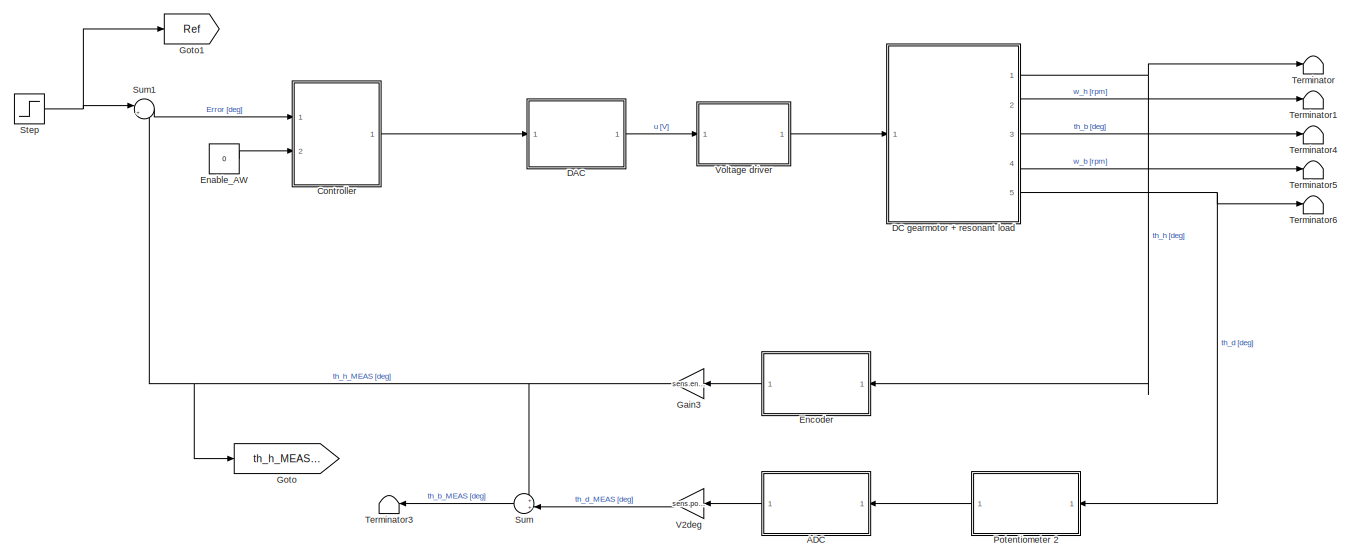
[diagram: root canvas - part 1/3, top center region]
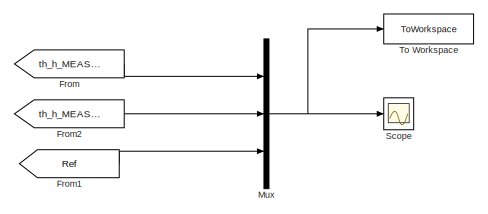
[diagram: root canvas - part 2/3, middle right region]
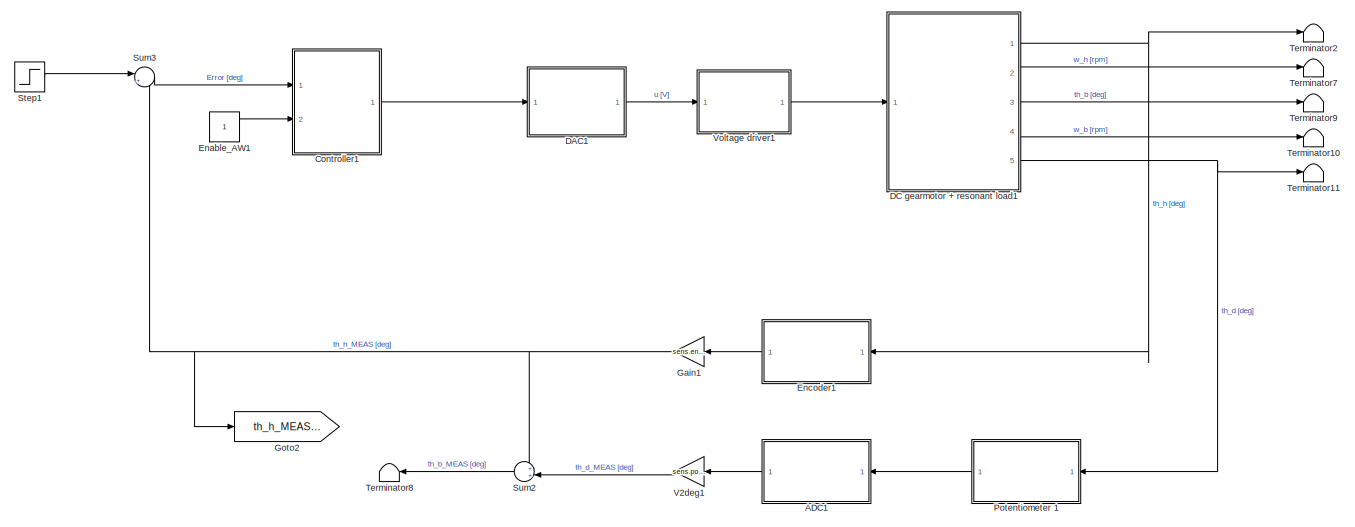
[diagram: root canvas - part 3/3, bottom center region]
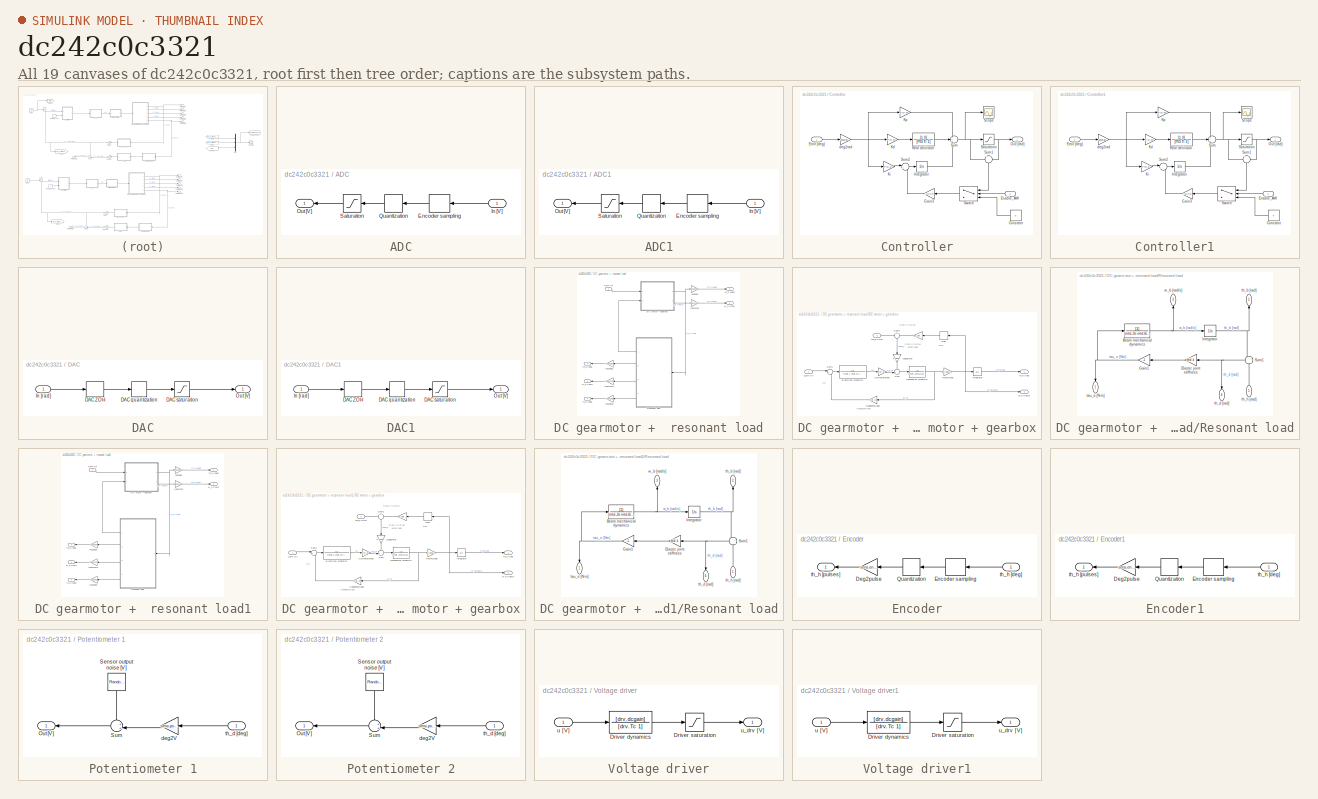
[diagram: thumbnail index - all 19 canvases of the model, root first then tree order]
MODEL slx_dc242c0c3321
KIND model
CONFIG AbsTol = auto
CONFIG EnableMultiTasking = off
CONFIG FixedStep = auto
CONFIG MaxStep = auto
CONFIG MinStep = auto
CONFIG RelTol = 1e-3
CONFIG SampleTimeConstraint = Unconstrained
CONFIG SolverName = ode45
CONFIG StartTime = 0.0
CONFIG StopTime = 4
BLOCK [SubSystem] ADC
  NameLocation = top
  Ports = [1, 1]
  RequestExecContextInheritance = off
BLOCK [ZeroOrderHold] ADC/Encoder sampling
  NameLocation = top
  SampleTime = sens.enc.T_s
BLOCK [Inport] ADC/In [V]
  NameLocation = top
BLOCK [Outport] ADC/Out [V]
  NameLocation = top
BLOCK [Quantizer] ADC/Quantization
  NameLocation = top
  QuantizationInterval = daq.adc.q
BLOCK [Saturate] ADC/Saturation
  LowerLimit = -daq.adc.fs
  NameLocation = top
  UpperLimit = daq.adc.fs
BLOCK [SubSystem] ADC1
  NameLocation = top
  Ports = [1, 1]
  RequestExecContextInheritance = off
BLOCK [ZeroOrderHold] ADC1/Encoder sampling
  NameLocation = top
  SampleTime = sens.enc.T_s
BLOCK [Inport] ADC1/In [V]
  NameLocation = top
BLOCK [Outport] ADC1/Out [V]
  NameLocation = top
BLOCK [Quantizer] ADC1/Quantization
  NameLocation = top
  QuantizationInterval = daq.adc.q
BLOCK [Saturate] ADC1/Saturation
  LowerLimit = -daq.adc.fs
  NameLocation = top
  UpperLimit = daq.adc.fs
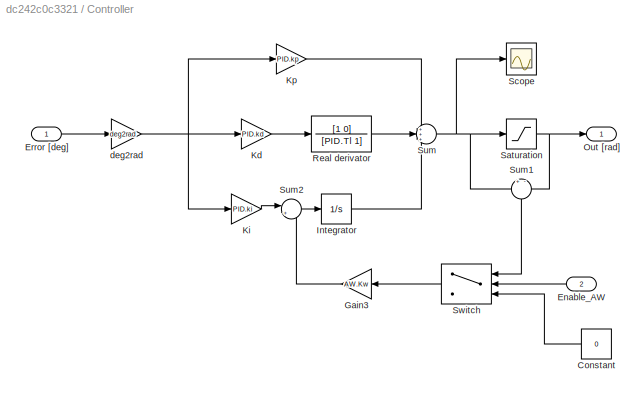
BLOCK [SubSystem] Controller
  Ports = [2, 1]
  RequestExecContextInheritance = off
BLOCK [Constant] Controller/Constant
  NameLocation = top
  Value = 0
BLOCK [Inport] Controller/Enable_AW
  NameLocation = top
  Port = 2
BLOCK [Inport] Controller/Error [deg]
BLOCK [Gain] Controller/Gain3
  Gain = AW.Kw
  NameLocation = top
BLOCK [Integrator] Controller/Integrator
  Ports = [1, 1]
BLOCK [Gain] Controller/Kd
  Gain = PID.kd
BLOCK [Gain] Controller/Ki
  Gain = PID.ki
BLOCK [Gain] Controller/Kp
  Gain = PID.kp
BLOCK [Outport] Controller/Out [rad]
BLOCK [TransferFcn] Controller/Real derivator
  Denominator = [PID.Tl 1]
  Numerator = [1 0]
BLOCK [Saturate] Controller/Saturation
  LowerLimit = -10
  UpperLimit = 10
BLOCK [Scope] Controller/Scope
  Floating = off
  NumInputPorts = 1
  Ports = [1]
  ScopeSpecificationString = Simulink.scopes.TimeScopeBlockCfg('CurrentConfiguration', extmgr.ConfigurationSet(extmgr.Configuration('Core','General UI',true),extmgr.Configuration('Core','Source UI',true),extmgr.Configuration('Sources','WiredSimulink',true,'DataLoggingVariableName','ScopeData1'),extmgr.Configuration('Visuals','Time Domain',true,'SerializedDisplays',{struct('MinYLimReal','-32.40531','MaxYLimReal','215.4143','YL...<+1368ch>
BLOCK [Sum] Controller/Sum
  Inputs = +++
  Ports = [3, 1]
BLOCK [Sum] Controller/Sum1
  Inputs = +-
  NameLocation = left
  Ports = [2, 1]
BLOCK [Sum] Controller/Sum2
  Inputs = |+-
  Ports = [2, 1]
BLOCK [Switch] Controller/Switch
  Criteria = u2 > Threshold
  InputSameDT = off
  NameLocation = top
  SaturateOnIntegerOverflow = off
BLOCK [Gain] Controller/deg2rad
  Gain = deg2rad
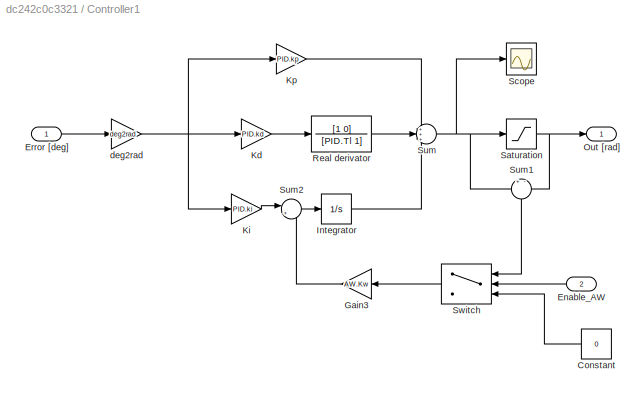
BLOCK [SubSystem] Controller1
  Ports = [2, 1]
  RequestExecContextInheritance = off
BLOCK [Constant] Controller1/Constant
  NameLocation = top
  Value = 0
BLOCK [Inport] Controller1/Enable_AW
  NameLocation = top
  Port = 2
BLOCK [Inport] Controller1/Error [deg]
BLOCK [Gain] Controller1/Gain3
  Gain = AW.Kw
  NameLocation = top
BLOCK [Integrator] Controller1/Integrator
  Ports = [1, 1]
BLOCK [Gain] Controller1/Kd
  Gain = PID.kd
BLOCK [Gain] Controller1/Ki
  Gain = PID.ki
BLOCK [Gain] Controller1/Kp
  Gain = PID.kp
BLOCK [Outport] Controller1/Out [rad]
BLOCK [TransferFcn] Controller1/Real derivator
  Denominator = [PID.Tl 1]
  Numerator = [1 0]
BLOCK [Saturate] Controller1/Saturation
  LowerLimit = -10
  UpperLimit = 10
BLOCK [Scope] Controller1/Scope
  Floating = off
  NumInputPorts = 1
  Ports = [1]
  ScopeSpecificationString = Simulink.scopes.TimeScopeBlockCfg('CurrentConfiguration', extmgr.ConfigurationSet(extmgr.Configuration('Core','General UI',true),extmgr.Configuration('Core','Source UI',true),extmgr.Configuration('Sources','WiredSimulink',true,'DataLoggingVariableName','ScopeData1'),extmgr.Configuration('Visuals','Time Domain',true,'SerializedDisplays',{struct('MinYLimReal','-11.77544','MaxYLimReal','89.5641','YLa...<+1364ch>
BLOCK [Sum] Controller1/Sum
  Inputs = +++
  Ports = [3, 1]
BLOCK [Sum] Controller1/Sum1
  Inputs = +-
  NameLocation = left
  Ports = [2, 1]
BLOCK [Sum] Controller1/Sum2
  Inputs = |+-
  Ports = [2, 1]
BLOCK [Switch] Controller1/Switch
  Criteria = u2 > Threshold
  InputSameDT = off
  NameLocation = top
  SaturateOnIntegerOverflow = off
BLOCK [Gain] Controller1/deg2rad
  Gain = deg2rad
BLOCK [SubSystem] DAC
  Ports = [1, 1]
  RequestExecContextInheritance = off
BLOCK [ZeroOrderHold] DAC/DAC ZOH
  SampleTime = sens.enc.T_s
BLOCK [Quantizer] DAC/DAC quantization
  QuantizationInterval = daq.dac.q
BLOCK [Saturate] DAC/DAC saturation
  LowerLimit = daq.dac.vss
  UpperLimit = daq.dac.vdd
BLOCK [Inport] DAC/In [rad]
BLOCK [Outport] DAC/Out [V]
BLOCK [SubSystem] DAC1
  Ports = [1, 1]
  RequestExecContextInheritance = off
BLOCK [ZeroOrderHold] DAC1/DAC ZOH
  SampleTime = sens.enc.T_s
BLOCK [Quantizer] DAC1/DAC quantization
  QuantizationInterval = daq.dac.q
BLOCK [Saturate] DAC1/DAC saturation
  LowerLimit = daq.dac.vss
  UpperLimit = daq.dac.vdd
BLOCK [Inport] DAC1/In [rad]
BLOCK [Outport] DAC1/Out [V]
BLOCK [SubSystem] DC gearmotor +  resonant load
  Ports = [1, 5]
  RequestExecContextInheritance = off
BLOCK [SubSystem] DC gearmotor +  resonant load/DC motor + gearbox
  Ports = [2, 2]
  RequestExecContextInheritance = off
BLOCK [Gain] DC gearmotor +  resonant load/DC motor + gearbox/ 
  Gain = est_par.tau_sf
  NameLocation = top
BLOCK [Gain] DC gearmotor +  resonant load/DC motor + gearbox/Current2torque
  Gain = mot.Kt
BLOCK [TransferFcn] DC gearmotor +  resonant load/DC motor + gearbox/Electrical dynamics
  Denominator = [mot.L mot.R+sens.curr.Rs]
BLOCK [Integrator] DC gearmotor +  resonant load/DC motor + gearbox/Integrator
  Ports = [1, 1]
BLOCK [Gain] DC gearmotor +  resonant load/DC motor + gearbox/Load2rotor
  Gain = 1/(gbox.N)
  NameLocation = left
BLOCK [TransferFcn] DC gearmotor +  resonant load/DC motor + gearbox/Mechanical dynamics
  Denominator = [mot.J+mld.Jh/(gbox.N)^2 est_par.B_eq]
BLOCK [Gain] DC gearmotor +  resonant load/DC motor + gearbox/Rotor2load
  Gain = 1/(gbox.N)
BLOCK [Gain] DC gearmotor +  resonant load/DC motor + gearbox/Speed2voltage
  Gain = mot.Ke
  NameLocation = top
BLOCK [Sum] DC gearmotor +  resonant load/DC motor + gearbox/Sum
  Inputs = -+|
  Ports = [2, 1]
BLOCK [Sum] DC gearmotor +  resonant load/DC motor + gearbox/Sum1
  Inputs = |+-
  Ports = [2, 1]
BLOCK [Sum] DC gearmotor +  resonant load/DC motor + gearbox/Sum2
  Inputs = +|+
  NameLocation = left
  Ports = [2, 1]
BLOCK [Signum] DC gearmotor +  resonant load/DC motor + gearbox/sign
  NameLocation = top
  ZeroCross = off
BLOCK [Inport] DC gearmotor +  resonant load/DC motor + gearbox/tau_e [Nm]
  Port = 2
BLOCK [Outport] DC gearmotor +  resonant load/DC motor + gearbox/th_h [rad]
BLOCK [Inport] DC gearmotor +  resonant load/DC motor + gearbox/u_drv [V]
BLOCK [Outport] DC gearmotor +  resonant load/DC motor + gearbox/w_h [rad//s]
  Port = 2
BLOCK [SubSystem] DC gearmotor +  resonant load/Resonant load
  NameLocation = top
  Ports = [1, 4]
  RequestExecContextInheritance = off
BLOCK [TransferFcn] DC gearmotor +  resonant load/Resonant load/Beam mechanical dynamics
  Denominator = [mld.Jb mld.Bb]
BLOCK [Gain] DC gearmotor +  resonant load/Resonant load/Elastic joint stiffness
  Gain = mld.k
  NameLocation = top
BLOCK [Gain] DC gearmotor +  resonant load/Resonant load/Gain1
  Gain = -1
  NameLocation = top
BLOCK [Integrator] DC gearmotor +  resonant load/Resonant load/Integrator
  Ports = [1, 1]
BLOCK [Sum] DC gearmotor +  resonant load/Resonant load/Sum1
  Inputs = +|-
  NameLocation = top
  Ports = [2, 1]
BLOCK [Outport] DC gearmotor +  resonant load/Resonant load/tau_e [Nm]
  NameLocation = left
BLOCK [Outport] DC gearmotor +  resonant load/Resonant load/th_b [rad]
  NameLocation = right
  Port = 2
BLOCK [Outport] DC gearmotor +  resonant load/Resonant load/th_d [rad]
  NameLocation = left
  Port = 4
BLOCK [Inport] DC gearmotor +  resonant load/Resonant load/th_h [rad]
  NameLocation = right
BLOCK [Outport] DC gearmotor +  resonant load/Resonant load/w_b [rad//s]
  NameLocation = right
  Port = 3
BLOCK [Gain] DC gearmotor +  resonant load/rad2deg
  Gain = rad2deg
BLOCK [Gain] DC gearmotor +  resonant load/rad2deg1
  Gain = rad2deg
  NameLocation = top
BLOCK [Gain] DC gearmotor +  resonant load/rad2deg2
  Gain = rad2deg
  NameLocation = top
BLOCK [Gain] DC gearmotor +  resonant load/rads2rpm
  Gain = rads2rpm
BLOCK [Gain] DC gearmotor +  resonant load/rads2rpm1
  Gain = rads2rpm
  NameLocation = top
BLOCK [Outport] DC gearmotor +  resonant load/th_b [deg]
  NameLocation = top
  Port = 3
BLOCK [Outport] DC gearmotor +  resonant load/th_d [deg]
  NameLocation = top
  Port = 5
BLOCK [Outport] DC gearmotor +  resonant load/th_h [deg]
BLOCK [Inport] DC gearmotor +  resonant load/u_drv [V]
BLOCK [Outport] DC gearmotor +  resonant load/w_b [rpm]
  NameLocation = top
  Port = 4
BLOCK [Outport] DC gearmotor +  resonant load/w_h [rpm]
  Port = 2
BLOCK [SubSystem] DC gearmotor +  resonant load1
  Ports = [1, 5]
  RequestExecContextInheritance = off
BLOCK [SubSystem] DC gearmotor +  resonant load1/DC motor + gearbox
  Ports = [2, 2]
  RequestExecContextInheritance = off
BLOCK [Gain] DC gearmotor +  resonant load1/DC motor + gearbox/ 
  Gain = est_par.tau_sf
  NameLocation = top
BLOCK [Gain] DC gearmotor +  resonant load1/DC motor + gearbox/Current2torque
  Gain = mot.Kt
BLOCK [TransferFcn] DC gearmotor +  resonant load1/DC motor + gearbox/Electrical dynamics
  Denominator = [mot.L mot.R+sens.curr.Rs]
BLOCK [Integrator] DC gearmotor +  resonant load1/DC motor + gearbox/Integrator
  Ports = [1, 1]
BLOCK [Gain] DC gearmotor +  resonant load1/DC motor + gearbox/Load2rotor
  Gain = 1/(gbox.N)
  NameLocation = left
BLOCK [TransferFcn] DC gearmotor +  resonant load1/DC motor + gearbox/Mechanical dynamics
  Denominator = [mot.J+mld.Jh/(gbox.N)^2 est_par.B_eq]
BLOCK [Gain] DC gearmotor +  resonant load1/DC motor + gearbox/Rotor2load
  Gain = 1/(gbox.N)
BLOCK [Gain] DC gearmotor +  resonant load1/DC motor + gearbox/Speed2voltage
  Gain = mot.Ke
  NameLocation = top
BLOCK [Sum] DC gearmotor +  resonant load1/DC motor + gearbox/Sum
  Inputs = -+|
  Ports = [2, 1]
BLOCK [Sum] DC gearmotor +  resonant load1/DC motor + gearbox/Sum1
  Inputs = |+-
  Ports = [2, 1]
BLOCK [Sum] DC gearmotor +  resonant load1/DC motor + gearbox/Sum2
  Inputs = +|+
  NameLocation = left
  Ports = [2, 1]
BLOCK [Signum] DC gearmotor +  resonant load1/DC motor + gearbox/sign
  NameLocation = top
  ZeroCross = off
BLOCK [Inport] DC gearmotor +  resonant load1/DC motor + gearbox/tau_e [Nm]
  Port = 2
BLOCK [Outport] DC gearmotor +  resonant load1/DC motor + gearbox/th_h [rad]
BLOCK [Inport] DC gearmotor +  resonant load1/DC motor + gearbox/u_drv [V]
BLOCK [Outport] DC gearmotor +  resonant load1/DC motor + gearbox/w_h [rad//s]
  Port = 2
BLOCK [SubSystem] DC gearmotor +  resonant load1/Resonant load
  NameLocation = top
  Ports = [1, 4]
  RequestExecContextInheritance = off
BLOCK [TransferFcn] DC gearmotor +  resonant load1/Resonant load/Beam mechanical dynamics
  Denominator = [mld.Jb mld.Bb]
BLOCK [Gain] DC gearmotor +  resonant load1/Resonant load/Elastic joint stiffness
  Gain = mld.k
  NameLocation = top
BLOCK [Gain] DC gearmotor +  resonant load1/Resonant load/Gain1
  Gain = -1
  NameLocation = top
BLOCK [Integrator] DC gearmotor +  resonant load1/Resonant load/Integrator
  Ports = [1, 1]
BLOCK [Sum] DC gearmotor +  resonant load1/Resonant load/Sum1
  Inputs = +|-
  NameLocation = top
  Ports = [2, 1]
BLOCK [Outport] DC gearmotor +  resonant load1/Resonant load/tau_e [Nm]
  NameLocation = left
BLOCK [Outport] DC gearmotor +  resonant load1/Resonant load/th_b [rad]
  NameLocation = right
  Port = 2
BLOCK [Outport] DC gearmotor +  resonant load1/Resonant load/th_d [rad]
  NameLocation = left
  Port = 4
BLOCK [Inport] DC gearmotor +  resonant load1/Resonant load/th_h [rad]
  NameLocation = right
BLOCK [Outport] DC gearmotor +  resonant load1/Resonant load/w_b [rad//s]
  NameLocation = right
  Port = 3
BLOCK [Gain] DC gearmotor +  resonant load1/rad2deg
  Gain = rad2deg
BLOCK [Gain] DC gearmotor +  resonant load1/rad2deg1
  Gain = rad2deg
  NameLocation = top
BLOCK [Gain] DC gearmotor +  resonant load1/rad2deg2
  Gain = rad2deg
  NameLocation = top
BLOCK [Gain] DC gearmotor +  resonant load1/rads2rpm
  Gain = rads2rpm
BLOCK [Gain] DC gearmotor +  resonant load1/rads2rpm1
  Gain = rads2rpm
  NameLocation = top
BLOCK [Outport] DC gearmotor +  resonant load1/th_b [deg]
  NameLocation = top
  Port = 3
BLOCK [Outport] DC gearmotor +  resonant load1/th_d [deg]
  NameLocation = top
  Port = 5
BLOCK [Outport] DC gearmotor +  resonant load1/th_h [deg]
BLOCK [Inport] DC gearmotor +  resonant load1/u_drv [V]
BLOCK [Outport] DC gearmotor +  resonant load1/w_b [rpm]
  NameLocation = top
  Port = 4
BLOCK [Outport] DC gearmotor +  resonant load1/w_h [rpm]
  Port = 2
BLOCK [Constant] Enable_AW
  Value = 0
BLOCK [Constant] Enable_AW1
BLOCK [SubSystem] Encoder
  NameLocation = top
  Ports = [1, 1]
  RequestExecContextInheritance = off
BLOCK [Gain] Encoder/Deg2pulse
  Gain = sens.enc.deg2pulse
  NameLocation = top
BLOCK [ZeroOrderHold] Encoder/Encoder sampling
  NameLocation = top
  SampleTime = sens.enc.T_s
BLOCK [Quantizer] Encoder/Quantization
  NameLocation = top
  QuantizationInterval = sens.enc.q
BLOCK [Inport] Encoder/th_h [deg]
  NameLocation = top
BLOCK [Outport] Encoder/th_h [pulses]
  NameLocation = top
BLOCK [SubSystem] Encoder1
  NameLocation = top
  Ports = [1, 1]
  RequestExecContextInheritance = off
BLOCK [Gain] Encoder1/Deg2pulse
  Gain = sens.enc.deg2pulse
  NameLocation = top
BLOCK [ZeroOrderHold] Encoder1/Encoder sampling
  NameLocation = top
  SampleTime = sens.enc.T_s
BLOCK [Quantizer] Encoder1/Quantization
  NameLocation = top
  QuantizationInterval = sens.enc.q
BLOCK [Inport] Encoder1/th_h [deg]
  NameLocation = top
BLOCK [Outport] Encoder1/th_h [pulses]
  NameLocation = top
BLOCK [From] From
  GotoTag = th_h_MEAS_NOAW
BLOCK [From] From1
  GotoTag = Ref
BLOCK [From] From2
  GotoTag = th_h_MEAS_AW
BLOCK [Gain] Gain1
  Gain = sens.enc.pulse2deg
  NameLocation = top
BLOCK [Gain] Gain3
  Gain = sens.enc.pulse2deg
  NameLocation = top
BLOCK [Goto] Goto
  GotoTag = th_h_MEAS_NOAW
BLOCK [Goto] Goto1
  GotoTag = Ref
BLOCK [Goto] Goto2
  GotoTag = th_h_MEAS_AW
BLOCK [Mux] Mux
  DisplayOption = bar
  Inputs = 3
  Ports = [3, 1]
BLOCK [SubSystem] Potentiometer 1
  NameLocation = top
  Ports = [1, 1]
  RequestExecContextInheritance = off
BLOCK [Outport] Potentiometer 1/Out [V]
  NameLocation = top
BLOCK [RandomNumber] Potentiometer 1/Sensor output noise [V]
  NameLocation = left
  SampleTime = 0.1
  Variance = sens.pot2.noise.var
BLOCK [Sum] Potentiometer 1/Sum
  Inputs = ++|
  NameLocation = top
  Ports = [2, 1]
BLOCK [Gain] Potentiometer 1/deg2V
  Gain = sens.pot2.deg2V
  NameLocation = top
BLOCK [Inport] Potentiometer 1/th_d [deg]
  NameLocation = top
BLOCK [SubSystem] Potentiometer 2
  NameLocation = top
  Ports = [1, 1]
  RequestExecContextInheritance = off
BLOCK [Outport] Potentiometer 2/Out [V]
  NameLocation = top
BLOCK [RandomNumber] Potentiometer 2/Sensor output noise [V]
  NameLocation = left
  SampleTime = 0.1
  Variance = sens.pot2.noise.var
BLOCK [Sum] Potentiometer 2/Sum
  Inputs = ++|
  NameLocation = top
  Ports = [2, 1]
BLOCK [Gain] Potentiometer 2/deg2V
  Gain = sens.pot2.deg2V
  NameLocation = top
BLOCK [Inport] Potentiometer 2/th_d [deg]
  NameLocation = top
BLOCK [Scope] Scope
  Floating = off
  NumInputPorts = 1
  Ports = [1]
  ScopeSpecificationString = Simulink.scopes.TimeScopeBlockCfg('CurrentConfiguration', extmgr.ConfigurationSet(extmgr.Configuration('Core','General UI',true),extmgr.Configuration('Core','Source UI',true),extmgr.Configuration('Sources','WiredSimulink',true),extmgr.Configuration('Visuals','Time Domain',true,'SerializedDisplays',{struct('MinYLimReal','-23.60962','MaxYLimReal','212.48657','YLabelReal','','MinYLimMag','0.00000','M...<+1723ch>
BLOCK [Step] Step
  After = 120
  SampleTime = 0
  Time = 0
BLOCK [Step] Step1
  After = 120
  SampleTime = 0
  Time = 0
BLOCK [Sum] Sum
  Inputs = ++|
  NameLocation = top
  Ports = [2, 1]
BLOCK [Sum] Sum1
  Inputs = |+-
  Ports = [2, 1]
BLOCK [Sum] Sum2
  Inputs = ++|
  NameLocation = top
  Ports = [2, 1]
BLOCK [Sum] Sum3
  Inputs = |+-
  Ports = [2, 1]
BLOCK [Terminator] Terminator
BLOCK [Terminator] Terminator1
BLOCK [Terminator] Terminator10
BLOCK [Terminator] Terminator11
BLOCK [Terminator] Terminator2
BLOCK [Terminator] Terminator3
  NameLocation = top
BLOCK [Terminator] Terminator4
BLOCK [Terminator] Terminator5
BLOCK [Terminator] Terminator6
BLOCK [Terminator] Terminator7
BLOCK [Terminator] Terminator8
  NameLocation = top
BLOCK [Terminator] Terminator9
BLOCK [ToWorkspace] To Workspace
  FixptAsFi = on
  MaxDataPoints = inf
  Ports = [1]
  SampleTime = -1
  SaveFormat = Structure With Time
  VariableName = simres
BLOCK [Gain] V2deg
  Gain = sens.pot2.V2deg
  NameLocation = top
BLOCK [Gain] V2deg1
  Gain = sens.pot2.V2deg
  NameLocation = top
BLOCK [SubSystem] Voltage driver
  Ports = [1, 1]
  RequestExecContextInheritance = off
BLOCK [TransferFcn] Voltage driver/Driver dynamics
  Denominator = [drv.Tc 1]
  Numerator = [drv.dcgain]
BLOCK [Saturate] Voltage driver/Driver saturation
  LowerLimit = -drv.outmax
  UpperLimit = drv.outmax
BLOCK [Inport] Voltage driver/u [V]
BLOCK [Outport] Voltage driver/u_drv [V]
BLOCK [SubSystem] Voltage driver1
  Ports = [1, 1]
  RequestExecContextInheritance = off
BLOCK [TransferFcn] Voltage driver1/Driver dynamics
  Denominator = [drv.Tc 1]
  Numerator = [drv.dcgain]
BLOCK [Saturate] Voltage driver1/Driver saturation
  LowerLimit = -drv.outmax
  UpperLimit = drv.outmax
BLOCK [Inport] Voltage driver1/u [V]
BLOCK [Outport] Voltage driver1/u_drv [V]
ANNOTATION DC gearmotor +  resonant load/DC motor + gearbox: Static friction
ANNOTATION DC gearmotor +  resonant load/DC motor + gearbox: Speed2voltage
ANNOTATION DC gearmotor +  resonant load/DC motor + gearbox: Static friction amplitude
ANNOTATION DC gearmotor +  resonant load/DC motor + gearbox: sign
ANNOTATION DC gearmotor +  resonant load/DC motor + gearbox: u_e
ANNOTATION DC gearmotor +  resonant load1/DC motor + gearbox: Static friction
ANNOTATION DC gearmotor +  resonant load1/DC motor + gearbox: Speed2voltage
ANNOTATION DC gearmotor +  resonant load1/DC motor + gearbox: Static friction amplitude
ANNOTATION DC gearmotor +  resonant load1/DC motor + gearbox: sign
ANNOTATION DC gearmotor +  resonant load1/DC motor + gearbox: u_e
LINE ADC/Encoder sampling:1 -> ADC/Quantization:1
LINE ADC/In [V]:1 -> ADC/Encoder sampling:1
LINE ADC/Quantization:1 -> ADC/Saturation:1
LINE ADC/Saturation:1 -> ADC/Out [V]:1
LINE ADC1/Encoder sampling:1 -> ADC1/Quantization:1
LINE ADC1/In [V]:1 -> ADC1/Encoder sampling:1
LINE ADC1/Quantization:1 -> ADC1/Saturation:1
LINE ADC1/Saturation:1 -> ADC1/Out [V]:1
LINE ADC1:1 -> V2deg1:1
LINE ADC:1 -> V2deg:1
LINE Controller/Constant:1 -> Controller/Switch:3
LINE Controller/Enable_AW:1 -> Controller/Switch:2
LINE Controller/Error [deg]:1 -> Controller/deg2rad:1
LINE Controller/Gain3:1 -> Controller/Sum2:2
LINE Controller/Integrator:1 -> Controller/Sum:3
LINE Controller/Kd:1 -> Controller/Real derivator:1
LINE Controller/Ki:1 -> Controller/Sum2:1
LINE Controller/Kp:1 -> Controller/Sum:1
LINE Controller/Real derivator:1 -> Controller/Sum:2
NET Controller/Saturation:1 -> Controller/Out [rad]:1, Controller/Sum1:2
LINE Controller/Sum1:1 -> Controller/Switch:1
LINE Controller/Sum2:1 -> Controller/Integrator:1
NET Controller/Sum:1 -> Controller/Saturation:1, Controller/Scope:1, Controller/Sum1:1
LINE Controller/Switch:1 -> Controller/Gain3:1
NET Controller/deg2rad:1 -> Controller/Kd:1, Controller/Ki:1, Controller/Kp:1
LINE Controller1/Constant:1 -> Controller1/Switch:3
LINE Controller1/Enable_AW:1 -> Controller1/Switch:2
LINE Controller1/Error [deg]:1 -> Controller1/deg2rad:1
LINE Controller1/Gain3:1 -> Controller1/Sum2:2
LINE Controller1/Integrator:1 -> Controller1/Sum:3
LINE Controller1/Kd:1 -> Controller1/Real derivator:1
LINE Controller1/Ki:1 -> Controller1/Sum2:1
LINE Controller1/Kp:1 -> Controller1/Sum:1
LINE Controller1/Real derivator:1 -> Controller1/Sum:2
NET Controller1/Saturation:1 -> Controller1/Out [rad]:1, Controller1/Sum1:2
LINE Controller1/Sum1:1 -> Controller1/Switch:1
LINE Controller1/Sum2:1 -> Controller1/Integrator:1
NET Controller1/Sum:1 -> Controller1/Saturation:1, Controller1/Scope:1, Controller1/Sum1:1
LINE Controller1/Switch:1 -> Controller1/Gain3:1
NET Controller1/deg2rad:1 -> Controller1/Kd:1, Controller1/Ki:1, Controller1/Kp:1
LINE Controller1:1 -> DAC1:1
LINE Controller:1 -> DAC:1
LINE DAC/DAC ZOH:1 -> DAC/DAC quantization:1
LINE DAC/DAC quantization:1 -> DAC/DAC saturation:1
LINE DAC/DAC saturation:1 -> DAC/Out [V]:1
LINE DAC/In [rad]:1 -> DAC/DAC ZOH:1
LINE DAC1/DAC ZOH:1 -> DAC1/DAC quantization:1
LINE DAC1/DAC quantization:1 -> DAC1/DAC saturation:1
LINE DAC1/DAC saturation:1 -> DAC1/Out [V]:1
LINE DAC1/In [rad]:1 -> DAC1/DAC ZOH:1
LINE DAC1:1 -> Voltage driver1:1
LINE DAC:1 -> Voltage driver:1
LINE DC gearmotor +  resonant load/DC motor + gearbox/ :1 -> DC gearmotor +  resonant load/DC motor + gearbox/Sum2:2
LINE DC gearmotor +  resonant load/DC motor + gearbox/Current2torque:1 -> DC gearmotor +  resonant load/DC motor + gearbox/Sum:2
LINE DC gearmotor +  resonant load/DC motor + gearbox/Electrical dynamics:1 -> DC gearmotor +  resonant load/DC motor + gearbox/Current2torque:1
LINE DC gearmotor +  resonant load/DC motor + gearbox/Integrator:1 -> DC gearmotor +  resonant load/DC motor + gearbox/th_h [rad]:1
LINE DC gearmotor +  resonant load/DC motor + gearbox/Load2rotor:1 -> DC gearmotor +  resonant load/DC motor + gearbox/Sum:1
NET DC gearmotor +  resonant load/DC motor + gearbox/Mechanical dynamics:1 -> DC gearmotor +  resonant load/DC motor + gearbox/Rotor2load:1, DC gearmotor +  resonant load/DC motor + gearbox/Speed2voltage:1
NET DC gearmotor +  resonant load/DC motor + gearbox/Rotor2load:1 -> DC gearmotor +  resonant load/DC motor + gearbox/Integrator:1, DC gearmotor +  resonant load/DC motor + gearbox/sign:1, DC gearmotor +  resonant load/DC motor + gearbox/w_h [rad//s]:1
LINE DC gearmotor +  resonant load/DC motor + gearbox/Speed2voltage:1 -> DC gearmotor +  resonant load/DC motor + gearbox/Sum1:2
LINE DC gearmotor +  resonant load/DC motor + gearbox/Sum1:1 -> DC gearmotor +  resonant load/DC motor + gearbox/Electrical dynamics:1
LINE DC gearmotor +  resonant load/DC motor + gearbox/Sum2:1 -> DC gearmotor +  resonant load/DC motor + gearbox/Load2rotor:1
LINE DC gearmotor +  resonant load/DC motor + gearbox/Sum:1 -> DC gearmotor +  resonant load/DC motor + gearbox/Mechanical dynamics:1
LINE DC gearmotor +  resonant load/DC motor + gearbox/sign:1 -> DC gearmotor +  resonant load/DC motor + gearbox/ :1
LINE DC gearmotor +  resonant load/DC motor + gearbox/tau_e [Nm]:1 -> DC gearmotor +  resonant load/DC motor + gearbox/Sum2:1
LINE DC gearmotor +  resonant load/DC motor + gearbox/u_drv [V]:1 -> DC gearmotor +  resonant load/DC motor + gearbox/Sum1:1
NET DC gearmotor +  resonant load/DC motor + gearbox:1 -> DC gearmotor +  resonant load/Resonant load:1, DC gearmotor +  resonant load/rad2deg:1
LINE DC gearmotor +  resonant load/DC motor + gearbox:2 -> DC gearmotor +  resonant load/rads2rpm:1
NET DC gearmotor +  resonant load/Resonant load/Beam mechanical dynamics:1 -> DC gearmotor +  resonant load/Resonant load/Integrator:1, DC gearmotor +  resonant load/Resonant load/w_b [rad//s]:1
LINE DC gearmotor +  resonant load/Resonant load/Elastic joint stiffness:1 -> DC gearmotor +  resonant load/Resonant load/Gain1:1
NET DC gearmotor +  resonant load/Resonant load/Gain1:1 -> DC gearmotor +  resonant load/Resonant load/Beam mechanical dynamics:1, DC gearmotor +  resonant load/Resonant load/tau_e [Nm]:1
NET DC gearmotor +  resonant load/Resonant load/Integrator:1 -> DC gearmotor +  resonant load/Resonant load/Sum1:1, DC gearmotor +  resonant load/Resonant load/th_b [rad]:1
NET DC gearmotor +  resonant load/Resonant load/Sum1:1 -> DC gearmotor +  resonant load/Resonant load/Elastic joint stiffness:1, DC gearmotor +  resonant load/Resonant load/th_d [rad]:1
LINE DC gearmotor +  resonant load/Resonant load/th_h [rad]:1 -> DC gearmotor +  resonant load/Resonant load/Sum1:2
LINE DC gearmotor +  resonant load/Resonant load:1 -> DC gearmotor +  resonant load/DC motor + gearbox:2
LINE DC gearmotor +  resonant load/Resonant load:2 -> DC gearmotor +  resonant load/rad2deg1:1
LINE DC gearmotor +  resonant load/Resonant load:3 -> DC gearmotor +  resonant load/rads2rpm1:1
LINE DC gearmotor +  resonant load/Resonant load:4 -> DC gearmotor +  resonant load/rad2deg2:1
LINE DC gearmotor +  resonant load/rad2deg1:1 -> DC gearmotor +  resonant load/th_b [deg]:1
LINE DC gearmotor +  resonant load/rad2deg2:1 -> DC gearmotor +  resonant load/th_d [deg]:1
LINE DC gearmotor +  resonant load/rad2deg:1 -> DC gearmotor +  resonant load/th_h [deg]:1
LINE DC gearmotor +  resonant load/rads2rpm1:1 -> DC gearmotor +  resonant load/w_b [rpm]:1
LINE DC gearmotor +  resonant load/rads2rpm:1 -> DC gearmotor +  resonant load/w_h [rpm]:1
LINE DC gearmotor +  resonant load/u_drv [V]:1 -> DC gearmotor +  resonant load/DC motor + gearbox:1
LINE DC gearmotor +  resonant load1/DC motor + gearbox/ :1 -> DC gearmotor +  resonant load1/DC motor + gearbox/Sum2:2
LINE DC gearmotor +  resonant load1/DC motor + gearbox/Current2torque:1 -> DC gearmotor +  resonant load1/DC motor + gearbox/Sum:2
LINE DC gearmotor +  resonant load1/DC motor + gearbox/Electrical dynamics:1 -> DC gearmotor +  resonant load1/DC motor + gearbox/Current2torque:1
LINE DC gearmotor +  resonant load1/DC motor + gearbox/Integrator:1 -> DC gearmotor +  resonant load1/DC motor + gearbox/th_h [rad]:1
LINE DC gearmotor +  resonant load1/DC motor + gearbox/Load2rotor:1 -> DC gearmotor +  resonant load1/DC motor + gearbox/Sum:1
NET DC gearmotor +  resonant load1/DC motor + gearbox/Mechanical dynamics:1 -> DC gearmotor +  resonant load1/DC motor + gearbox/Rotor2load:1, DC gearmotor +  resonant load1/DC motor + gearbox/Speed2voltage:1
NET DC gearmotor +  resonant load1/DC motor + gearbox/Rotor2load:1 -> DC gearmotor +  resonant load1/DC motor + gearbox/Integrator:1, DC gearmotor +  resonant load1/DC motor + gearbox/sign:1, DC gearmotor +  resonant load1/DC motor + gearbox/w_h [rad//s]:1
LINE DC gearmotor +  resonant load1/DC motor + gearbox/Speed2voltage:1 -> DC gearmotor +  resonant load1/DC motor + gearbox/Sum1:2
LINE DC gearmotor +  resonant load1/DC motor + gearbox/Sum1:1 -> DC gearmotor +  resonant load1/DC motor + gearbox/Electrical dynamics:1
LINE DC gearmotor +  resonant load1/DC motor + gearbox/Sum2:1 -> DC gearmotor +  resonant load1/DC motor + gearbox/Load2rotor:1
LINE DC gearmotor +  resonant load1/DC motor + gearbox/Sum:1 -> DC gearmotor +  resonant load1/DC motor + gearbox/Mechanical dynamics:1
LINE DC gearmotor +  resonant load1/DC motor + gearbox/sign:1 -> DC gearmotor +  resonant load1/DC motor + gearbox/ :1
LINE DC gearmotor +  resonant load1/DC motor + gearbox/tau_e [Nm]:1 -> DC gearmotor +  resonant load1/DC motor + gearbox/Sum2:1
LINE DC gearmotor +  resonant load1/DC motor + gearbox/u_drv [V]:1 -> DC gearmotor +  resonant load1/DC motor + gearbox/Sum1:1
NET DC gearmotor +  resonant load1/DC motor + gearbox:1 -> DC gearmotor +  resonant load1/Resonant load:1, DC gearmotor +  resonant load1/rad2deg:1
LINE DC gearmotor +  resonant load1/DC motor + gearbox:2 -> DC gearmotor +  resonant load1/rads2rpm:1
NET DC gearmotor +  resonant load1/Resonant load/Beam mechanical dynamics:1 -> DC gearmotor +  resonant load1/Resonant load/Integrator:1, DC gearmotor +  resonant load1/Resonant load/w_b [rad//s]:1
LINE DC gearmotor +  resonant load1/Resonant load/Elastic joint stiffness:1 -> DC gearmotor +  resonant load1/Resonant load/Gain1:1
NET DC gearmotor +  resonant load1/Resonant load/Gain1:1 -> DC gearmotor +  resonant load1/Resonant load/Beam mechanical dynamics:1, DC gearmotor +  resonant load1/Resonant load/tau_e [Nm]:1
NET DC gearmotor +  resonant load1/Resonant load/Integrator:1 -> DC gearmotor +  resonant load1/Resonant load/Sum1:1, DC gearmotor +  resonant load1/Resonant load/th_b [rad]:1
NET DC gearmotor +  resonant load1/Resonant load/Sum1:1 -> DC gearmotor +  resonant load1/Resonant load/Elastic joint stiffness:1, DC gearmotor +  resonant load1/Resonant load/th_d [rad]:1
LINE DC gearmotor +  resonant load1/Resonant load/th_h [rad]:1 -> DC gearmotor +  resonant load1/Resonant load/Sum1:2
LINE DC gearmotor +  resonant load1/Resonant load:1 -> DC gearmotor +  resonant load1/DC motor + gearbox:2
LINE DC gearmotor +  resonant load1/Resonant load:2 -> DC gearmotor +  resonant load1/rad2deg1:1
LINE DC gearmotor +  resonant load1/Resonant load:3 -> DC gearmotor +  resonant load1/rads2rpm1:1
LINE DC gearmotor +  resonant load1/Resonant load:4 -> DC gearmotor +  resonant load1/rad2deg2:1
LINE DC gearmotor +  resonant load1/rad2deg1:1 -> DC gearmotor +  resonant load1/th_b [deg]:1
LINE DC gearmotor +  resonant load1/rad2deg2:1 -> DC gearmotor +  resonant load1/th_d [deg]:1
LINE DC gearmotor +  resonant load1/rad2deg:1 -> DC gearmotor +  resonant load1/th_h [deg]:1
LINE DC gearmotor +  resonant load1/rads2rpm1:1 -> DC gearmotor +  resonant load1/w_b [rpm]:1
LINE DC gearmotor +  resonant load1/rads2rpm:1 -> DC gearmotor +  resonant load1/w_h [rpm]:1
LINE DC gearmotor +  resonant load1/u_drv [V]:1 -> DC gearmotor +  resonant load1/DC motor + gearbox:1
NET DC gearmotor +  resonant load1:1 -> Encoder1:1, Terminator2:1
LINE DC gearmotor +  resonant load1:2 -> Terminator7:1
LINE DC gearmotor +  resonant load1:3 -> Terminator9:1
LINE DC gearmotor +  resonant load1:4 -> Terminator10:1
NET DC gearmotor +  resonant load1:5 -> Potentiometer 1:1, Terminator11:1
NET DC gearmotor +  resonant load:1 -> Encoder:1, Terminator:1
LINE DC gearmotor +  resonant load:2 -> Terminator1:1
LINE DC gearmotor +  resonant load:3 -> Terminator4:1
LINE DC gearmotor +  resonant load:4 -> Terminator5:1
NET DC gearmotor +  resonant load:5 -> Potentiometer 2:1, Terminator6:1
LINE Enable_AW1:1 -> Controller1:2
LINE Enable_AW:1 -> Controller:2
LINE Encoder/Deg2pulse:1 -> Encoder/th_h [pulses]:1
LINE Encoder/Encoder sampling:1 -> Encoder/Quantization:1
LINE Encoder/Quantization:1 -> Encoder/Deg2pulse:1
LINE Encoder/th_h [deg]:1 -> Encoder/Encoder sampling:1
LINE Encoder1/Deg2pulse:1 -> Encoder1/th_h [pulses]:1
LINE Encoder1/Encoder sampling:1 -> Encoder1/Quantization:1
LINE Encoder1/Quantization:1 -> Encoder1/Deg2pulse:1
LINE Encoder1/th_h [deg]:1 -> Encoder1/Encoder sampling:1
LINE Encoder1:1 -> Gain1:1
LINE Encoder:1 -> Gain3:1
LINE From1:1 -> Mux:3
LINE From2:1 -> Mux:2
LINE From:1 -> Mux:1
NET Gain1:1 -> Goto2:1, Sum2:1, Sum3:2
NET Gain3:1 -> Goto:1, Sum1:2, Sum:1
NET Mux:1 -> Scope:1, To Workspace:1
LINE Potentiometer 1/Sensor output noise [V]:1 -> Potentiometer 1/Sum:1
LINE Potentiometer 1/Sum:1 -> Potentiometer 1/Out [V]:1
LINE Potentiometer 1/deg2V:1 -> Potentiometer 1/Sum:2
LINE Potentiometer 1/th_d [deg]:1 -> Potentiometer 1/deg2V:1
LINE Potentiometer 1:1 -> ADC1:1
LINE Potentiometer 2/Sensor output noise [V]:1 -> Potentiometer 2/Sum:1
LINE Potentiometer 2/Sum:1 -> Potentiometer 2/Out [V]:1
LINE Potentiometer 2/deg2V:1 -> Potentiometer 2/Sum:2
LINE Potentiometer 2/th_d [deg]:1 -> Potentiometer 2/deg2V:1
LINE Potentiometer 2:1 -> ADC:1
LINE Step1:1 -> Sum3:1
NET Step:1 -> Goto1:1, Sum1:1
LINE Sum1:1 -> Controller:1
LINE Sum2:1 -> Terminator8:1
LINE Sum3:1 -> Controller1:1
LINE Sum:1 -> Terminator3:1
LINE V2deg1:1 -> Sum2:2
LINE V2deg:1 -> Sum:2
LINE Voltage driver/Driver dynamics:1 -> Voltage driver/Driver saturation:1
LINE Voltage driver/Driver saturation:1 -> Voltage driver/u_drv [V]:1
LINE Voltage driver/u [V]:1 -> Voltage driver/Driver dynamics:1
LINE Voltage driver1/Driver dynamics:1 -> Voltage driver1/Driver saturation:1
LINE Voltage driver1/Driver saturation:1 -> Voltage driver1/u_drv [V]:1
LINE Voltage driver1/u [V]:1 -> Voltage driver1/Driver dynamics:1
LINE Voltage driver1:1 -> DC gearmotor +  resonant load1:1
LINE Voltage driver:1 -> DC gearmotor +  resonant load:1
note: NET lines group one-source signal fan-out (src -> all destinations, sorted); 1:1 wires keep LINE
